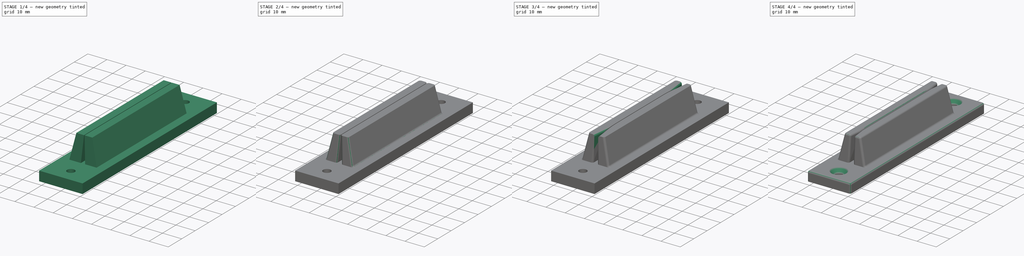
[diagram: build sequence overview — one tinted view per stage of 4, left to right]
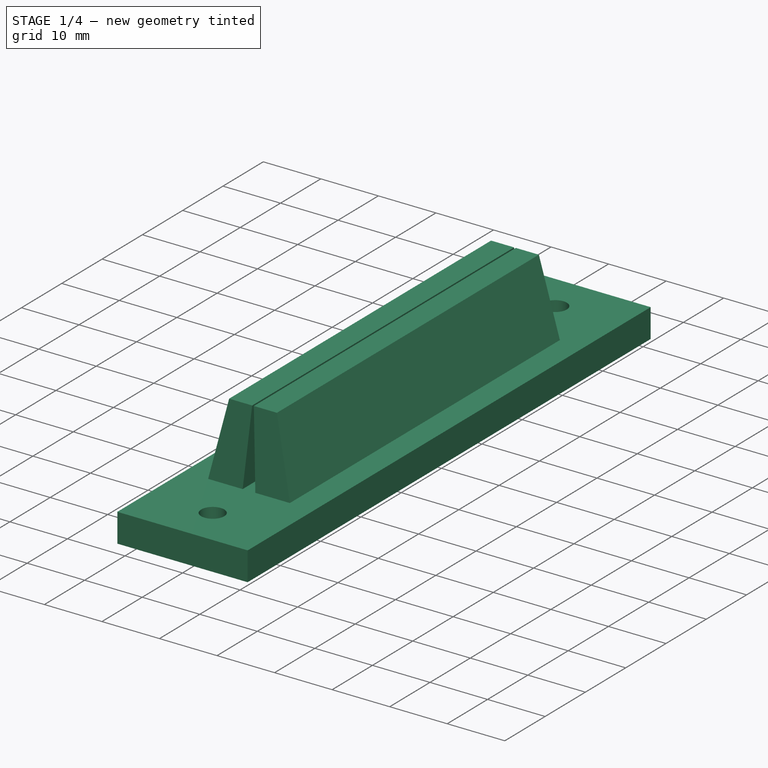
[diagram: stage 1 of 4 — iso view after this stage's code; geometry added in this stage tinted green]
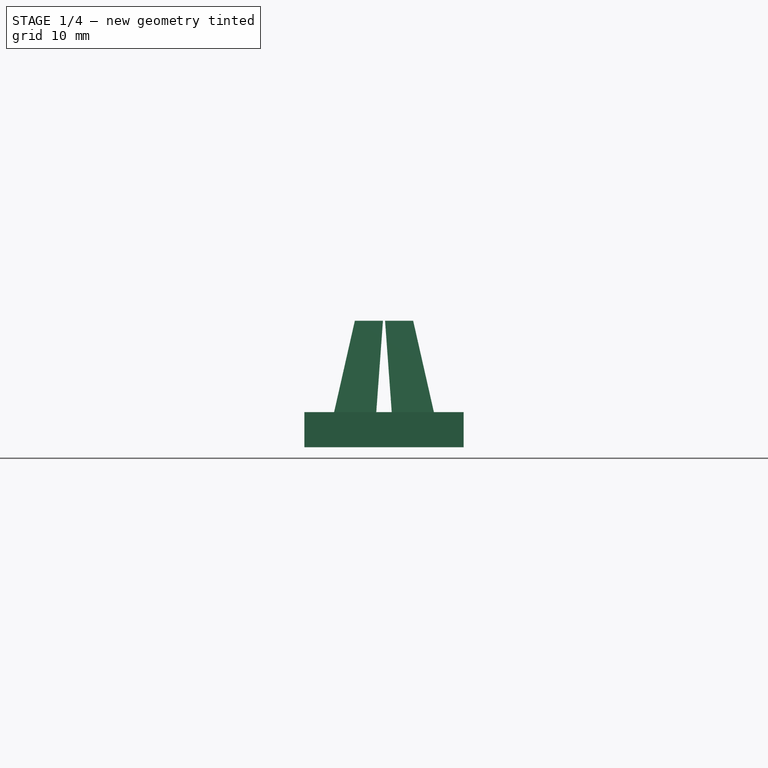
[diagram: stage 1 of 4 — front view after this stage's code; geometry added in this stage tinted green]
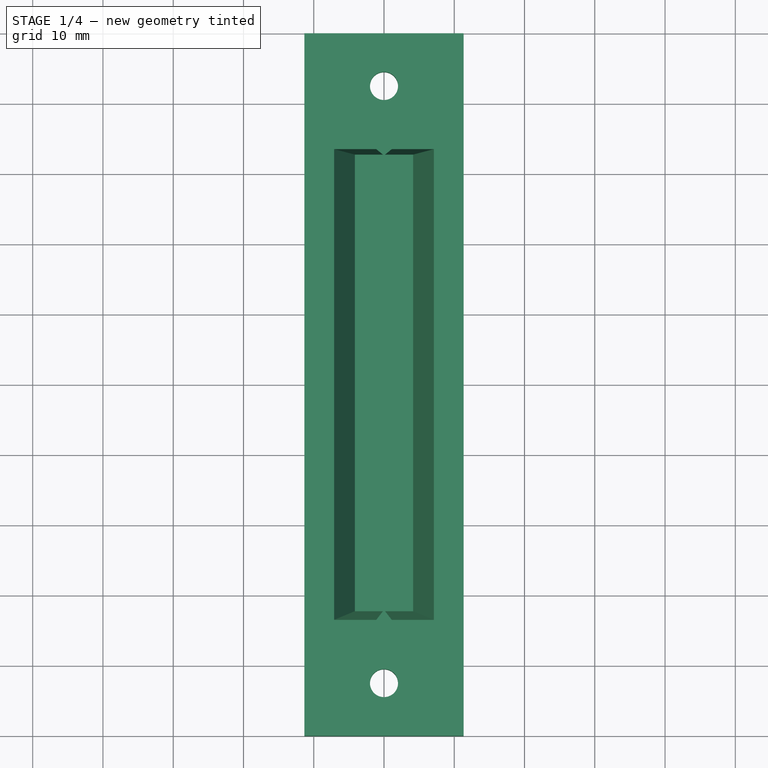
[diagram: stage 1 of 4 — top view after this stage's code; geometry added in this stage tinted green]
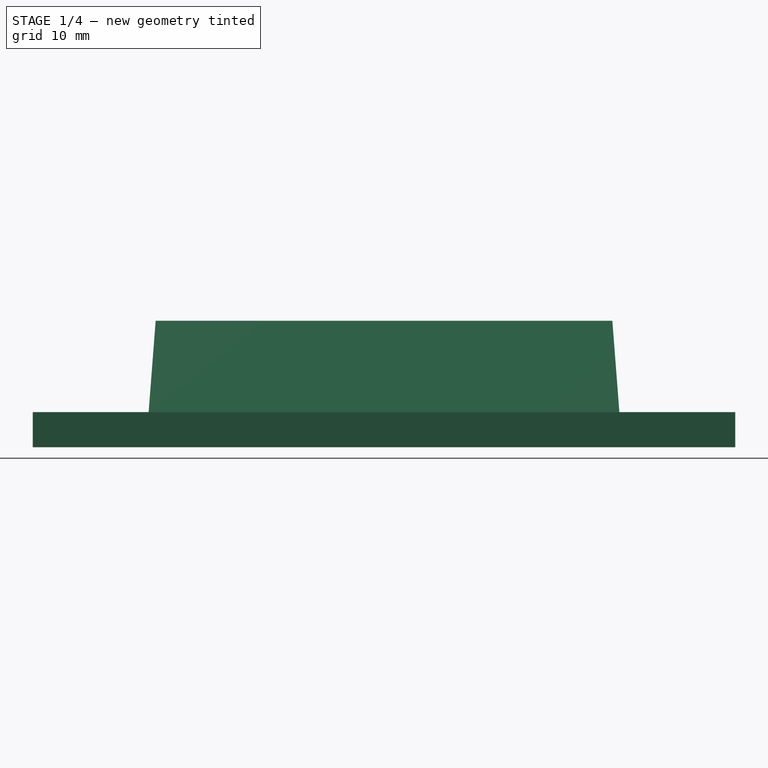
[diagram: stage 1 of 4 — right view after this stage's code; geometry added in this stage tinted green]
FCSTD DOCUMENT  (FreeCAD 1.1R14555 (Git shallow))
Label: kayak - race card
License: All rights reserved
LicenseURL: https://en.wikipedia.org/wiki/All_rights_reserved
objects: PartDesign::Fillet×7, Sketcher::SketchObject×5, PartDesign::Mirrored×2, PartDesign::Pocket×2, App::Point×1, PartDesign::Pad×1, PartDesign::AdditiveLoft×1, PartDesign::Chamfer×1, PartDesign::Body×1
note: 51 computed .brp shape members not serialized (recipe doc carries the construction recipe); baked Part::Feature solids carry a one-line shape summary decoded from their .brp

FEATURE [App::Point] Origin001
  Role = Origin
FEATURE [Sketcher::SketchObject] Sketch
  ArcFitTolerance = 1e-06
  AttachmentSupport = -> [Origin]
  ExternalTypes = [0]
  FullyConstrained = true
  MakeInternals = false
  MapMode = 5
  sketch-geometry (4):
    g0: LineSegment StartX=-11.325 StartY=50 StartZ=0 EndX=-11.325 EndY=-50 EndZ=0
    g1: LineSegment StartX=-11.325 StartY=-50 StartZ=0 EndX=11.325 EndY=-50 EndZ=0
    g2: LineSegment StartX=11.325 StartY=-50 StartZ=0 EndX=11.325 EndY=50 EndZ=0
    g3: LineSegment StartX=11.325 StartY=50 StartZ=0 EndX=-11.325 EndY=50 EndZ=0
  constraints (11):
    c: Coincident(g0,g1)
    c: Coincident(g1,g2)
    c: Coincident(g2,g3)
    c: Coincident(g3,g0)
    c: Vertical(g0)
    c: Vertical(g2)
    c: Horizontal(g1)
    c: Horizontal(g3)
    c: DistanceY(g2,g2) = 100
    c: DistanceX(g3,g3) = 22.65
    c: Symmetric(g0,g1,g-1)
FEATURE [PartDesign::Pad] Pad
  Direction = (0,0,1)
  Length = 5
  Length2 = 10
  Profile = -> Sketch
  ReferenceAxis = -> Sketch [N_Axis]
  Refine = true
  SideType = 0
  Suppressed = false
  Type = 0
  Type2 = 0
FEATURE [Sketcher::SketchObject] Sketch001
  ArcFitTolerance = 1e-06
  AttachmentSupport = -> [Pad]
  ExternalGeometry = -> [Pad]
  ExternalTypes = [0,0]
  FullyConstrained = true
  MakeInternals = false
  MapMode = 5
  Placement = pos=(0,0,5) rot=(0,0,1;0rad)
  sketch-geometry (4):
    g0: LineSegment StartX=1.1 StartY=33.5 StartZ=0 EndX=1.1 EndY=-33.5 EndZ=0
    g1: LineSegment StartX=1.1 StartY=-33.5 StartZ=0 EndX=7.1 EndY=-33.5 EndZ=0
    g2: LineSegment StartX=7.1 StartY=-33.5 StartZ=0 EndX=7.1 EndY=33.5 EndZ=0
    g3: LineSegment StartX=7.1 StartY=33.5 StartZ=0 EndX=1.1 EndY=33.5 EndZ=0
  constraints (11):
    c: Coincident(g0,g1)
    c: Coincident(g1,g2)
    c: Coincident(g2,g3)
    c: Coincident(g3,g0)
    c: Vertical(g2)
    c: Horizontal(g1)
    c: Horizontal(g3)
    c: DistanceY(g2,g2) = 67
    c: Symmetric(g0,g0,g-1)
    c: DistanceX(g1,g1) = 6
    c: Distance(g0,g-2) = 1.1
FEATURE [Sketcher::SketchObject] Sketch002
  ArcFitTolerance = 1e-06
  AttachmentOffset = pos=(0,0,13) rot=(0,0,1;0rad)
  AttachmentSupport = -> [Sketch001]
  ExternalTypes = [0]
  FullyConstrained = true
  MakeInternals = false
  MapMode = 2
  Placement = pos=(0,0,18) rot=(0,0,1;0rad)
  sketch-geometry (4):
    g0: LineSegment StartX=0.15 StartY=32.5 StartZ=0 EndX=0.15 EndY=-32.5 EndZ=0
    g1: LineSegment StartX=0.15 StartY=-32.5 StartZ=0 EndX=4.15 EndY=-32.5 EndZ=0
    g2: LineSegment StartX=4.15 StartY=-32.5 StartZ=0 EndX=4.15 EndY=32.5 EndZ=0
    g3: LineSegment StartX=4.15 StartY=32.5 StartZ=0 EndX=0.15 EndY=32.5 EndZ=0
  constraints (11):
    c: Coincident(g0,g1)
    c: Coincident(g1,g2)
    c: Coincident(g2,g3)
    c: Coincident(g3,g0)
    c: Vertical(g2)
    c: Horizontal(g1)
    c: Horizontal(g3)
    c: DistanceX(g1,g1) = 4
    c: DistanceY(g2,g2) = 65
    c: Distance(g0,g-2) = 0.15
    c: Symmetric(g0,g0,g-1)
FEATURE [PartDesign::AdditiveLoft] AdditiveLoft
  BaseFeature = -> Pad
  Closed = false
  Profile = -> Sketch002
  Refine = true
  Ruled = false
  Sections = -> [Sketch001]
  Suppressed = false
FEATURE [PartDesign::Mirrored] Mirrored
  BaseFeature = -> AdditiveLoft
  MirrorPlane = -> Sketch002 [V_Axis]
  Originals = -> [AdditiveLoft]
  Refine = true
  Suppressed = false
  TransformMode = 0
FEATURE [Sketcher::SketchObject] Sketch003
  ArcFitTolerance = 1e-06
  AttachmentSupport = -> [Mirrored]
  ExternalTypes = [0]
  FullyConstrained = true
  MakeInternals = false
  MapMode = 5
  Placement = pos=(0,0,5) rot=(0,0,1;0rad)
  sketch-geometry (2):
    g0: Circle CenterX=0 CenterY=42.5 CenterZ=0 NormalX=0 NormalY=0 NormalZ=1 AngleXU=0 Radius=2
    g1: Circle CenterX=0 CenterY=-42.5 CenterZ=0 NormalX=0 NormalY=0 NormalZ=1 AngleXU=0 Radius=2
  constraints (5):
    c: PointOnObject(g0,g-2)
    c: Symmetric(g1,g0,g-1)
    c: DistanceY(g1,g0) = 85
    c: Equal(g1,g0)
    c: Diameter(g0) = 4
FEATURE [PartDesign::Pocket] Pocket
  BaseFeature = -> Mirrored
  Direction = (0,0,-1)
  Length = 5
  Length2 = 5
  Profile = -> Sketch003
  ReferenceAxis = -> Sketch003 [N_Axis]
  Refine = true
  SideType = 0
  Suppressed = false
  Type = 0
  Type2 = 0
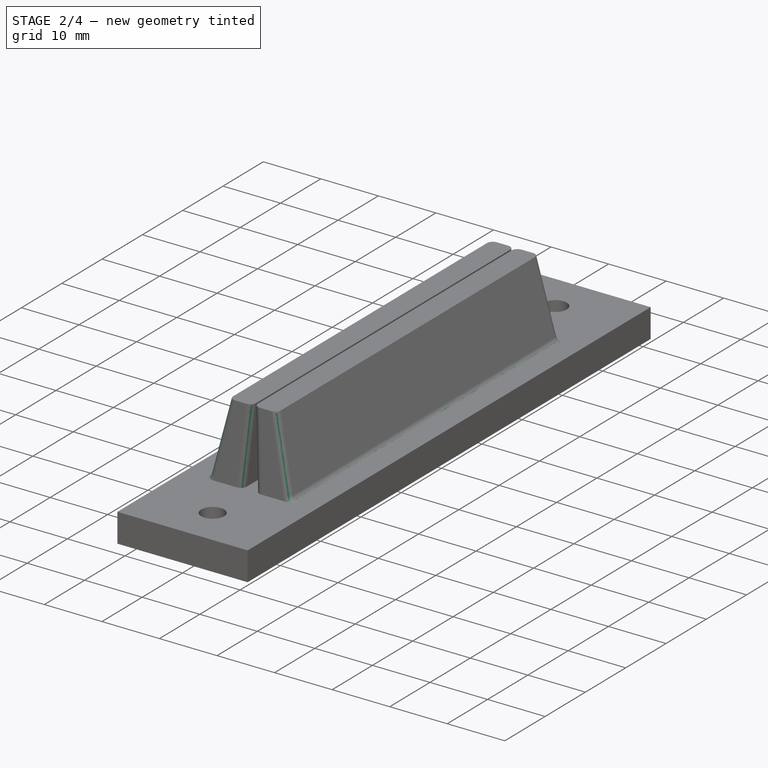
[diagram: stage 2 of 4 — iso view after this stage's code; geometry added in this stage tinted green]
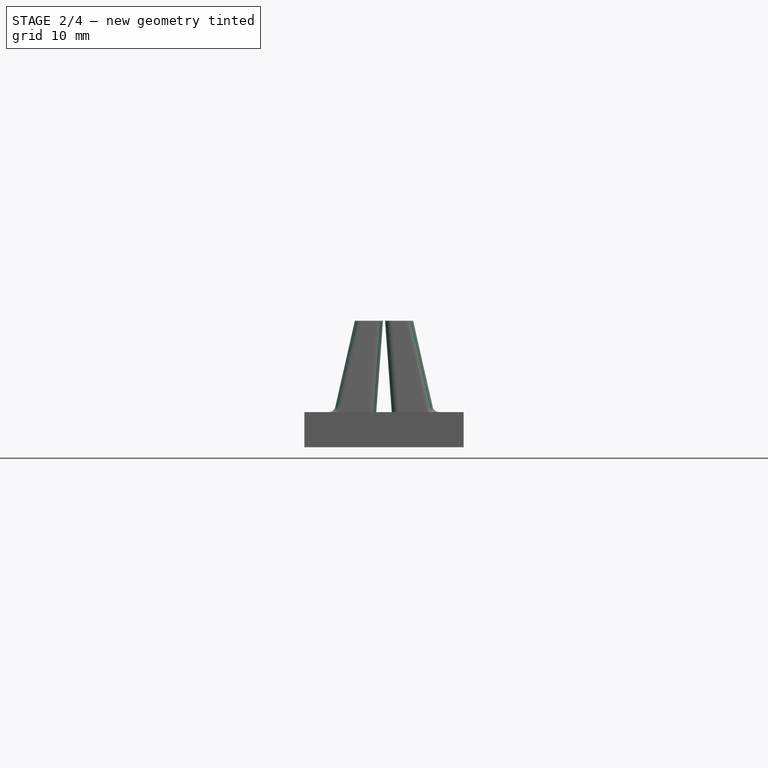
[diagram: stage 2 of 4 — front view after this stage's code; geometry added in this stage tinted green]
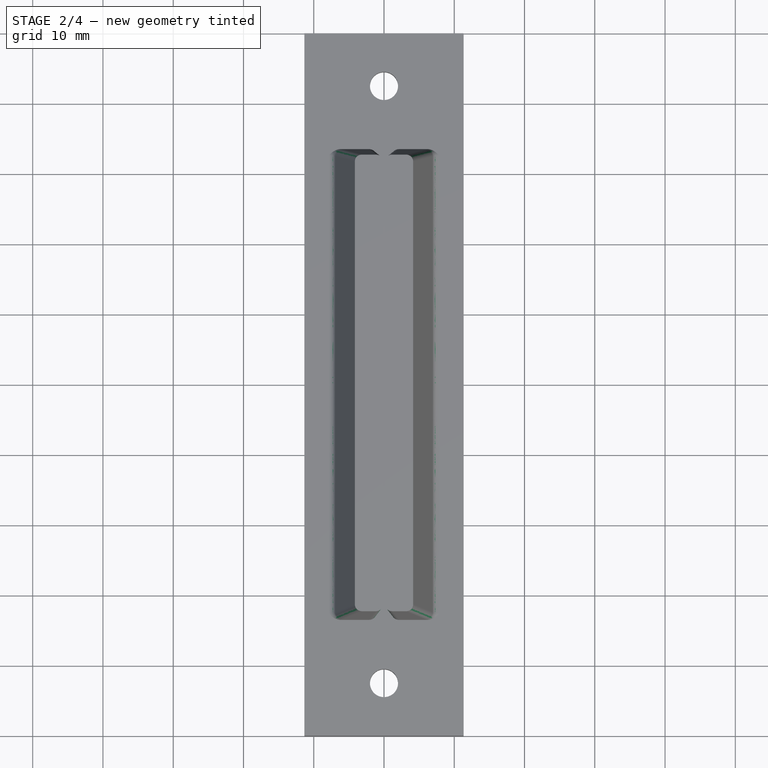
[diagram: stage 2 of 4 — top view after this stage's code; geometry added in this stage tinted green]
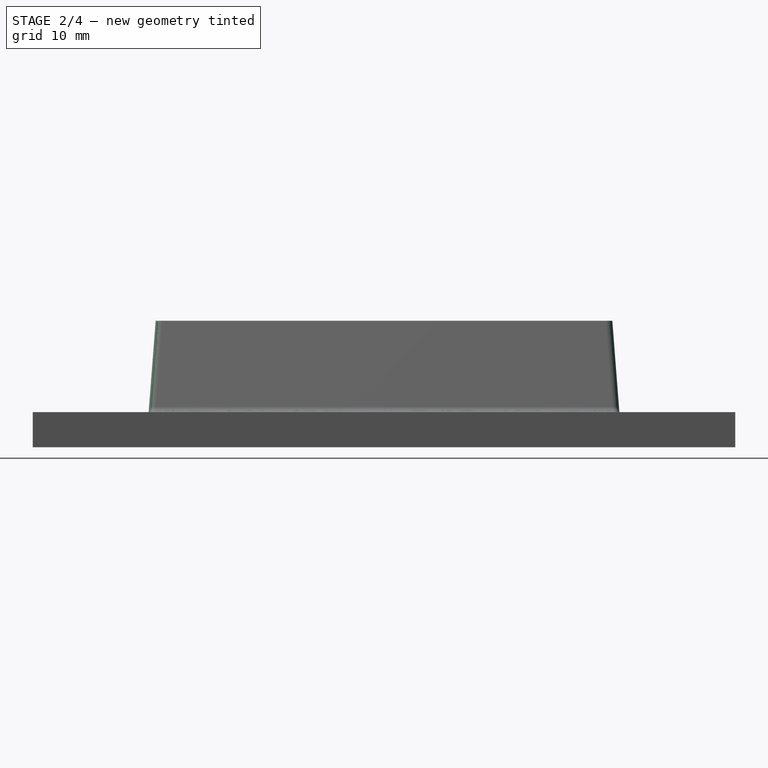
[diagram: stage 2 of 4 — right view after this stage's code; geometry added in this stage tinted green]
FEATURE [PartDesign::Fillet] Fillet
  Base = -> Pocket [Edge17,Edge23]
  BaseFeature = -> Pocket
  Radius = 1
  Refine = true
  SupportTransform = false
  Suppressed = false
  UseAllEdges = false
FEATURE [PartDesign::Fillet] Fillet001
  Base = -> Fillet [Edge19,Edge41,Edge27,Edge49]
  BaseFeature = -> Fillet
  Radius = 1
  Refine = true
  SupportTransform = false
  Suppressed = false
  UseAllEdges = false
FEATURE [PartDesign::Fillet] Fillet002
  Base = -> Fillet001 [Edge21,Edge47,Edge26,Edge52]
  BaseFeature = -> Fillet001
  Radius = 1
  Refine = true
  SupportTransform = false
  Suppressed = false
  UseAllEdges = false
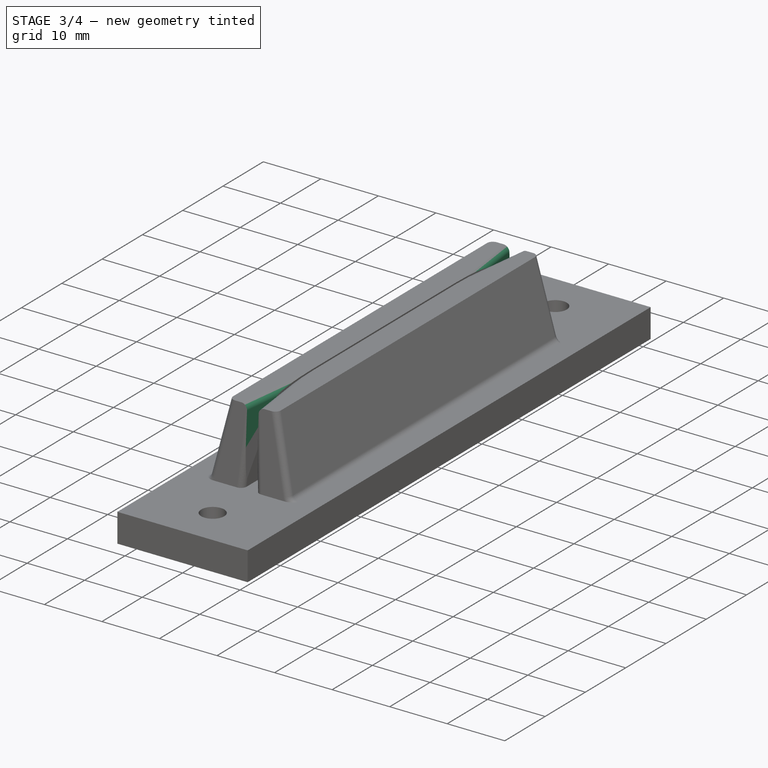
[diagram: stage 3 of 4 — iso view after this stage's code; geometry added in this stage tinted green]
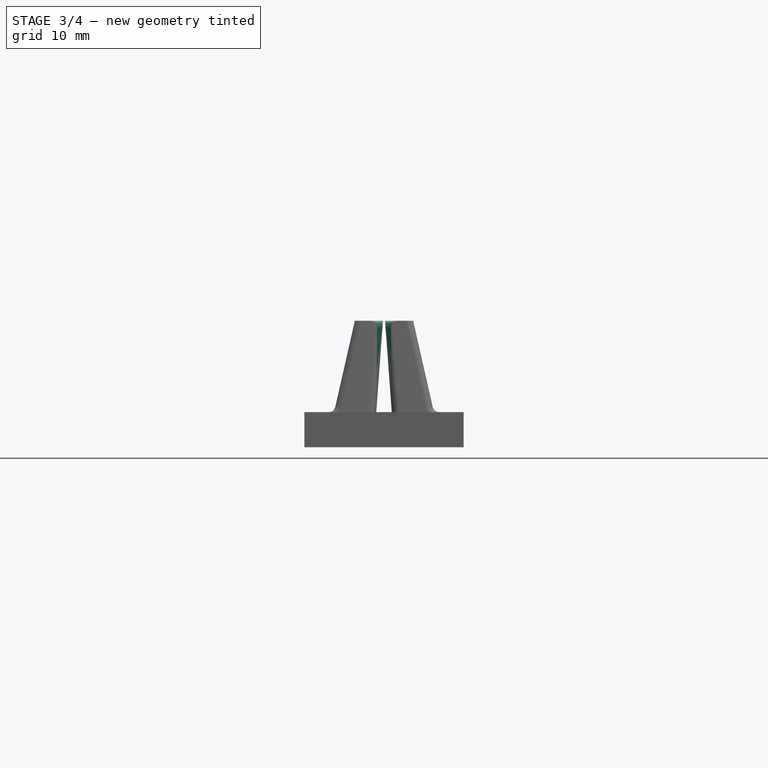
[diagram: stage 3 of 4 — front view after this stage's code; geometry added in this stage tinted green]
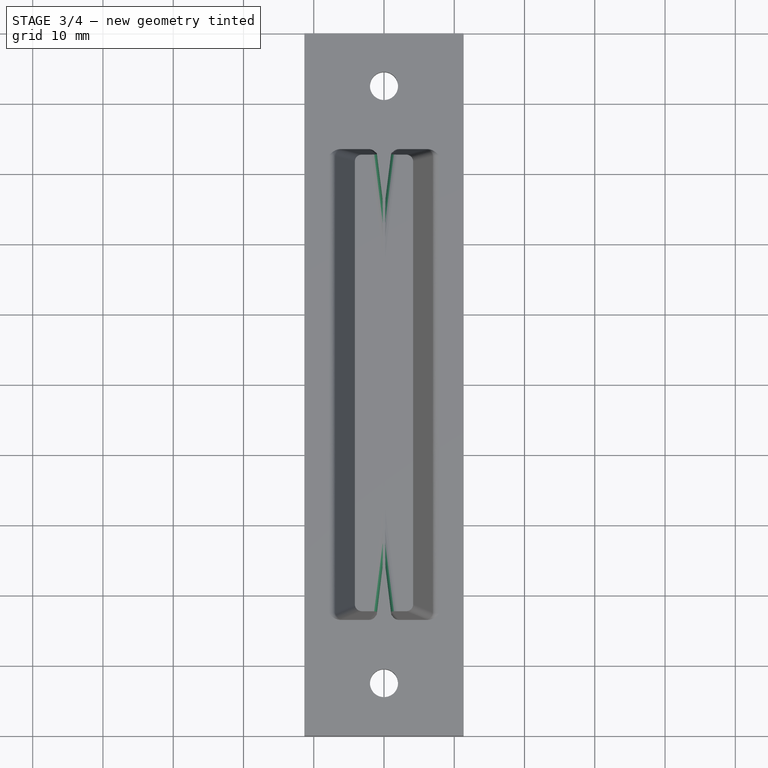
[diagram: stage 3 of 4 — top view after this stage's code; geometry added in this stage tinted green]
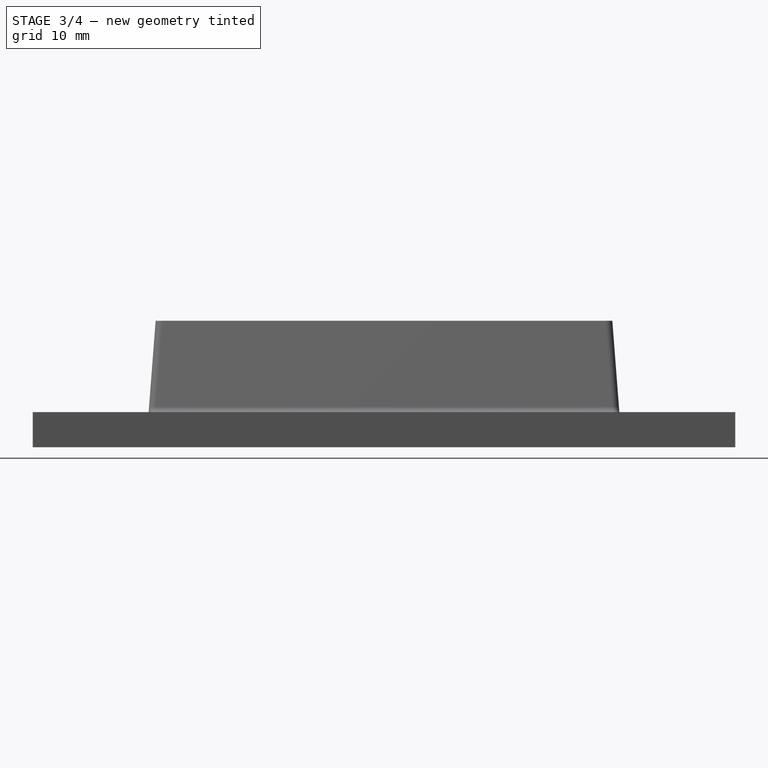
[diagram: stage 3 of 4 — right view after this stage's code; geometry added in this stage tinted green]
FEATURE [Sketcher::SketchObject] Sketch004
  ArcFitTolerance = 1e-06
  AttachmentSupport = -> [Fillet002]
  ExternalGeometry = -> [Fillet002]
  ExternalTypes = [0,0,0,0,0,0]
  FullyConstrained = false
  MakeInternals = false
  MapMode = 5
  Placement = pos=(0,0,18) rot=(0,0,1;0rad)
  sketch-geometry (4):
    g0: LineSegment StartX=-1.15869 StartY=-33.7541 StartZ=0 EndX=-0.15 EndY=-25.7541 EndZ=0
    g1: LineSegment StartX=1.15869 StartY=-33.7541 StartZ=0 EndX=0.15 EndY=-25.7541 EndZ=0
    g2: LineSegment StartX=-1.15869 StartY=-33.7541 StartZ=0 EndX=1.15869 EndY=-33.7541 EndZ=0
    g3: LineSegment StartX=-0.15 StartY=-25.7541 StartZ=0 EndX=0.15 EndY=-25.7541 EndZ=0
  constraints (9):
    c: PointOnObject(g0,g-3)
    c: PointOnObject(g1,g-4)
    c: Horizontal(g1,g0)
    c: Coincident(g2,g0)
    c: Coincident(g2,g1)
    c: Coincident(g3,g0)
    c: Coincident(g3,g1)
    c: DistanceY(g1,g1) = 8
    c: Symmetric(g0,g1,g-2)
FEATURE [PartDesign::Pocket] Pocket001
  BaseFeature = -> Fillet002
  Direction = (0,0,-1)
  Length = 5
  Length2 = 5
  Profile = -> Sketch004
  ReferenceAxis = -> Sketch004 [N_Axis]
  Refine = true
  SideType = 0
  Suppressed = false
  Type = 2
  Type2 = 0
FEATURE [PartDesign::Mirrored] Mirrored001
  BaseFeature = -> Pocket001
  MirrorPlane = -> Sketch004 [H_Axis]
  Originals = -> [Pocket001]
  Refine = true
  Suppressed = false
  TransformMode = 0
FEATURE [PartDesign::Fillet] Fillet003
  Base = -> Mirrored001 [Edge86,Edge57,Edge58,Edge87]
  BaseFeature = -> Mirrored001
  Radius = 1
  Refine = true
  SupportTransform = false
  Suppressed = false
  UseAllEdges = false
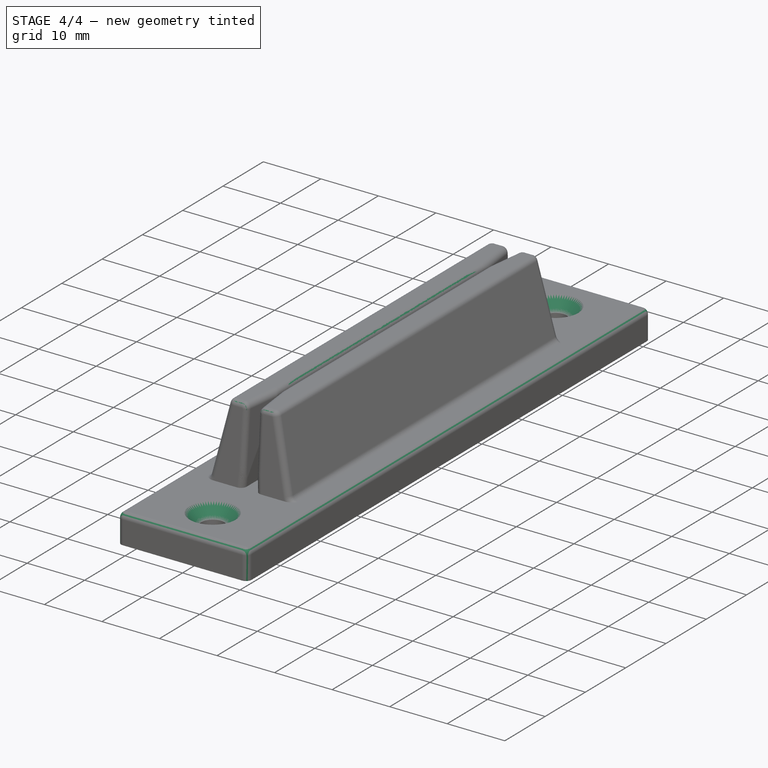
[diagram: stage 4 of 4 — iso view after this stage's code; geometry added in this stage tinted green]
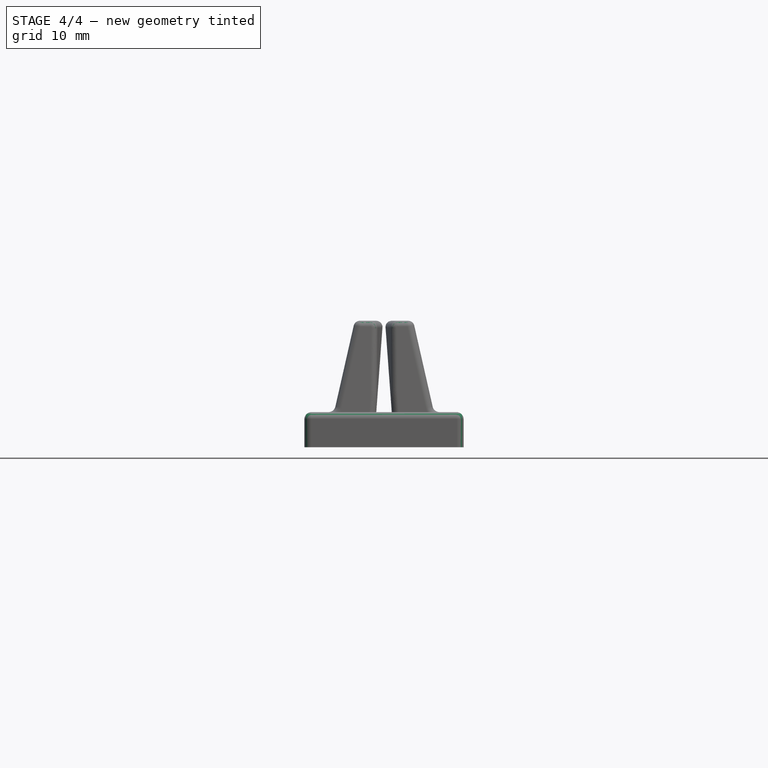
[diagram: stage 4 of 4 — front view after this stage's code; geometry added in this stage tinted green]
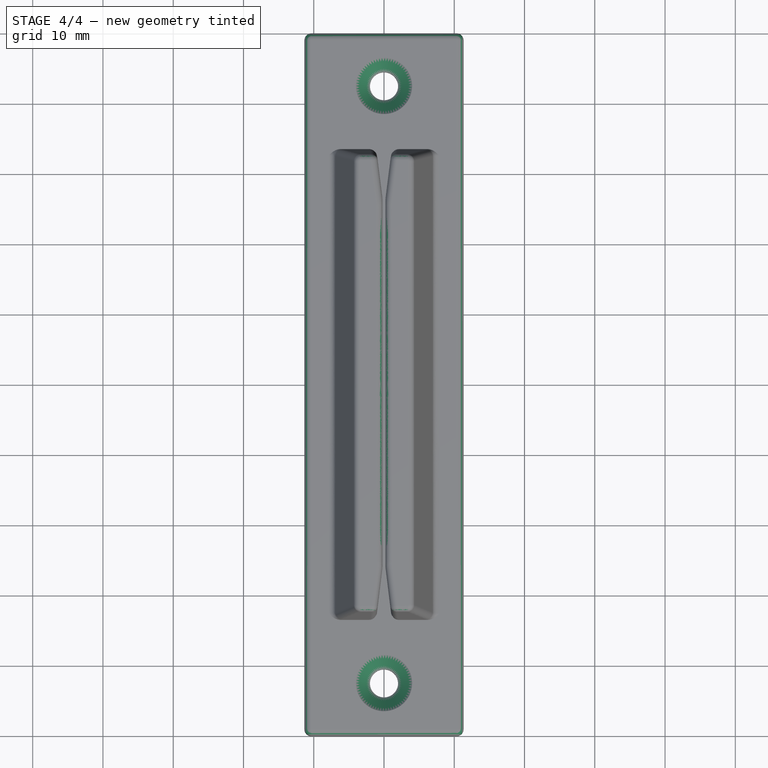
[diagram: stage 4 of 4 — top view after this stage's code; geometry added in this stage tinted green]
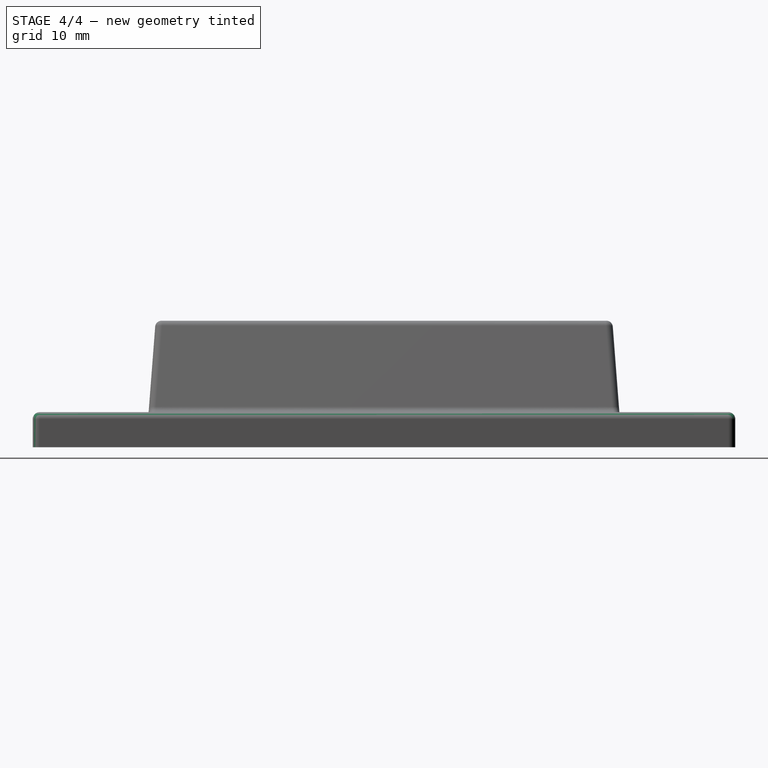
[diagram: stage 4 of 4 — right view after this stage's code; geometry added in this stage tinted green]
FEATURE [PartDesign::Fillet] Fillet004
  Base = -> Fillet003 [Edge60,Edge58,Edge57,Edge62]
  BaseFeature = -> Fillet003
  Radius = 1
  Refine = true
  SupportTransform = false
  Suppressed = false
  UseAllEdges = false
FEATURE [PartDesign::Fillet] Fillet005
  Base = -> Fillet004 [Edge1,Edge4,Edge8,Edge5]
  BaseFeature = -> Fillet004
  Radius = 1
  Refine = true
  SupportTransform = false
  Suppressed = false
  UseAllEdges = false
FEATURE [PartDesign::Chamfer] Chamfer
  Angle = 45
  Base = -> Fillet005 [Edge21,Edge22]
  BaseFeature = -> Fillet005
  ChamferType = 0
  FlipDirection = false
  Refine = true
  Size = 2
  Size2 = 1
  SupportTransform = false
  Suppressed = false
  UseAllEdges = false
FEATURE [PartDesign::Fillet] Fillet006
  Base = -> Chamfer [Edge126,Edge117]
  BaseFeature = -> Chamfer
  Radius = 0.9
  Refine = true
  SupportTransform = false
  Suppressed = false
  UseAllEdges = false
FEATURE [PartDesign::Body] Body
  AllowCompound = true
  Group = -> [Sketch,Pad,Sketch001,Sketch002,AdditiveLoft,Mirrored,Sketch003,Pocket,Fillet,Fillet001,Fillet002,Sketch004,Pocket001,Mirrored001,Fillet003,Fillet004,Fillet005,Chamfer,Fillet006]
  Origin = -> Origin
  Tip = -> Fillet006
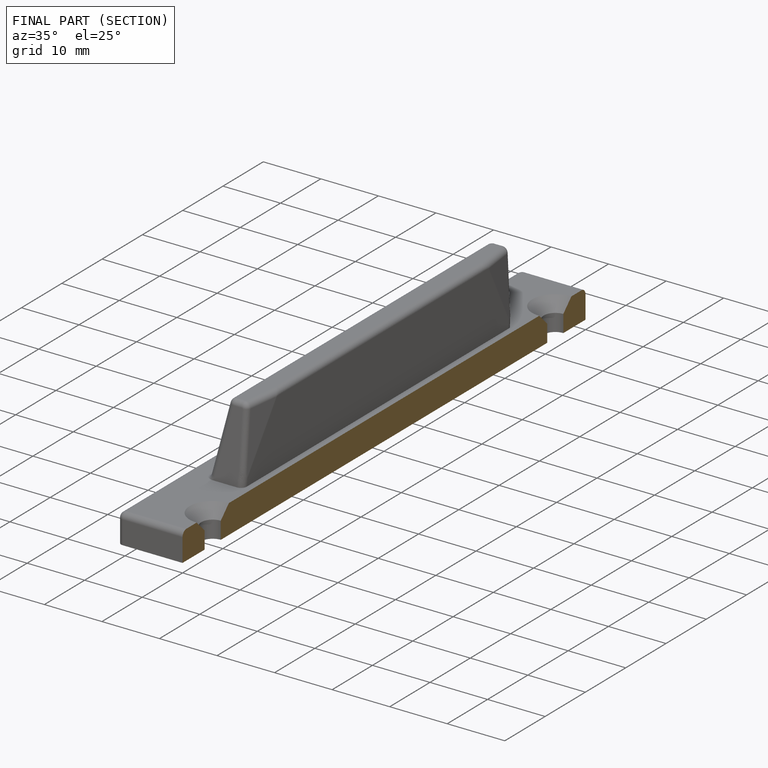
[diagram: finished part — half-section view (interior)]
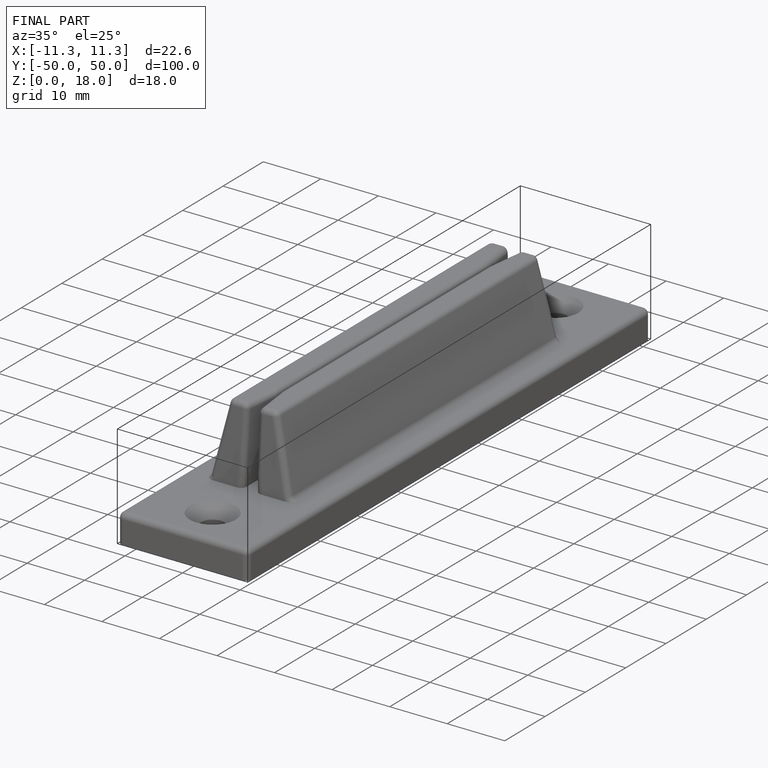
[diagram: finished part — iso view with bounding-box wireframe]
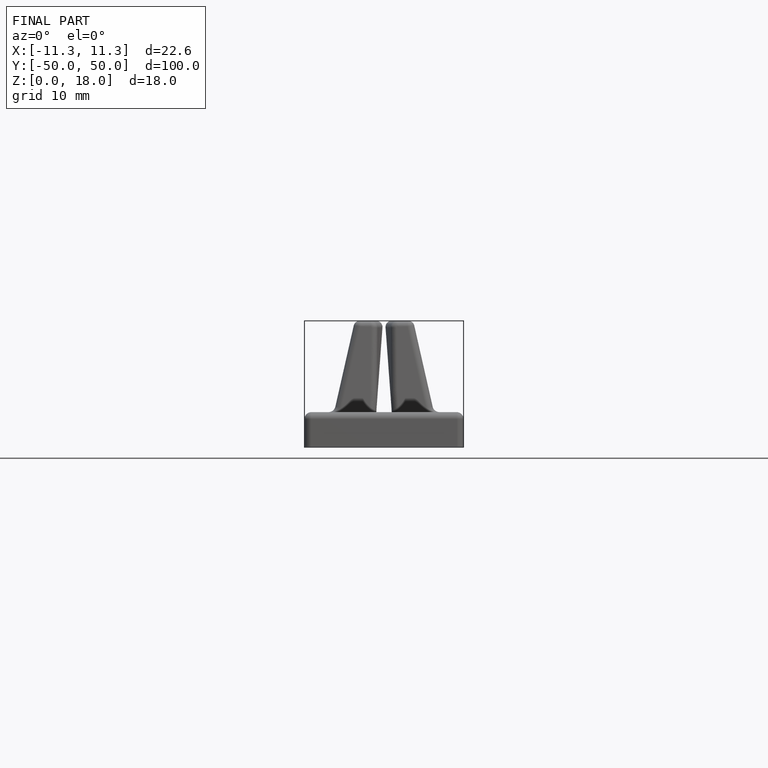
[diagram: finished part — front view with bounding-box wireframe]
